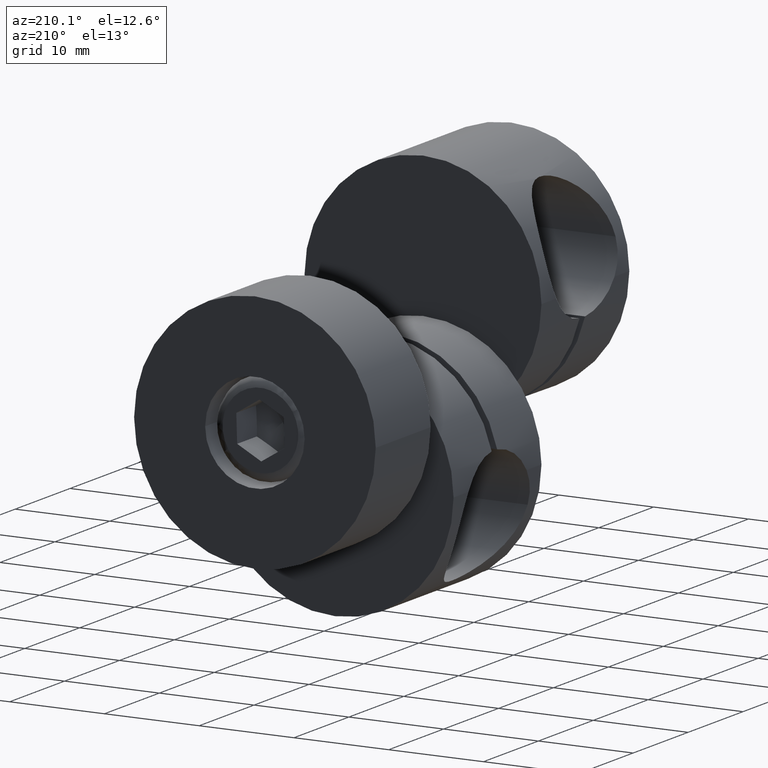
[diagram: clean part render]
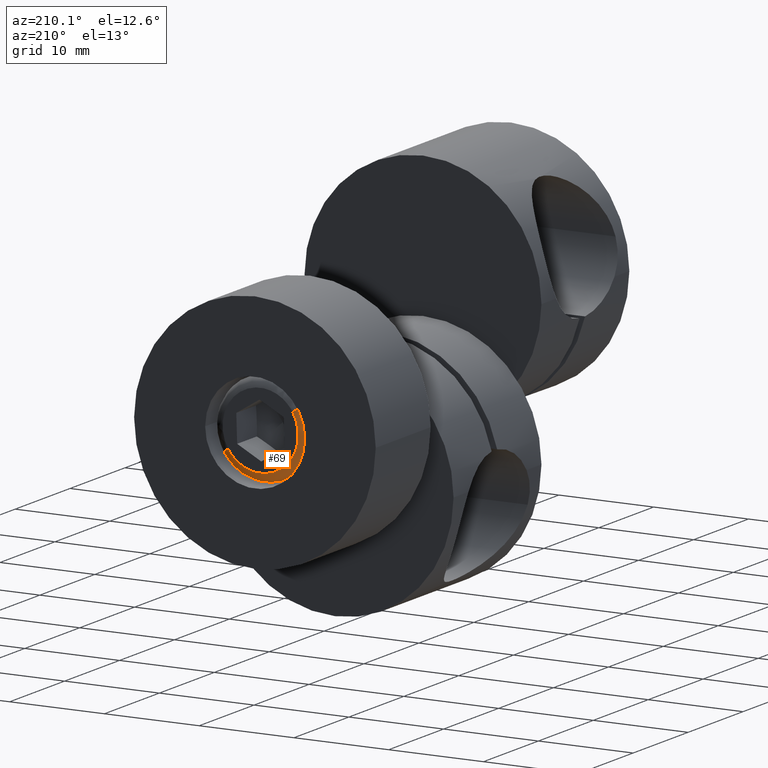
[diagram: same view with one face highlighted and labeled with its STEP entity id]
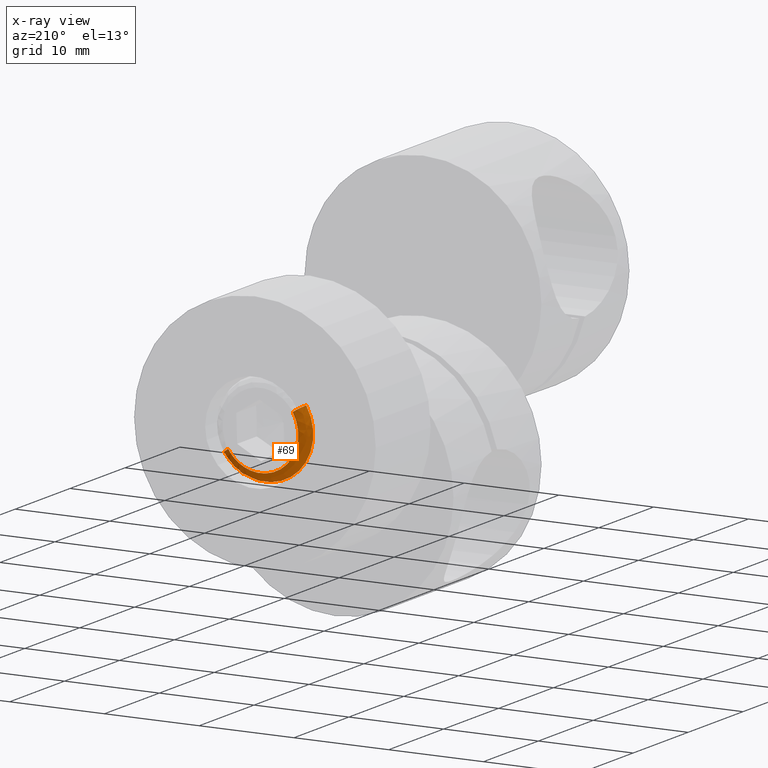
[diagram: x-ray of the same camera — body ghosted, the highlighted face saturated]
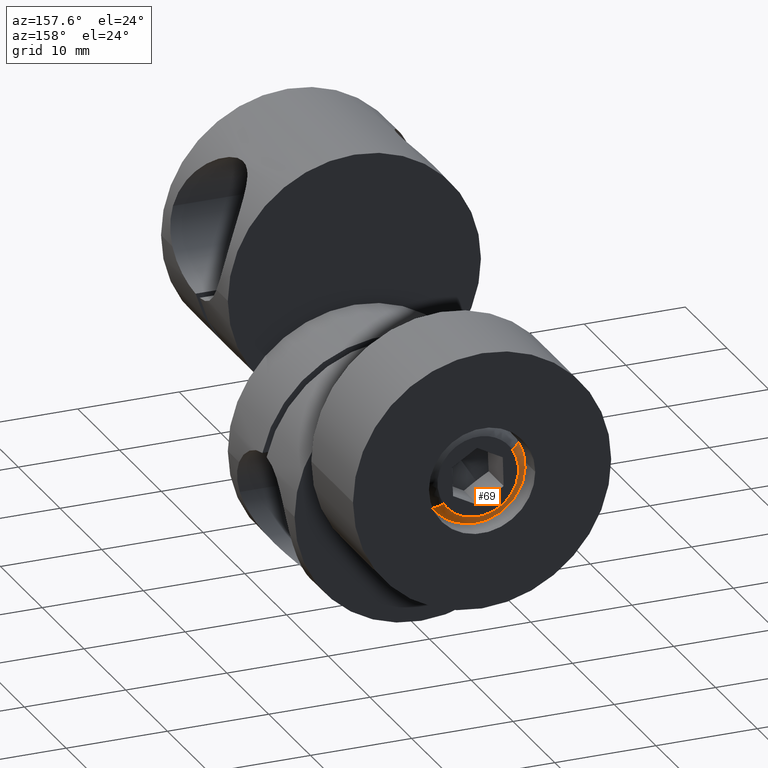
[diagram: same view with one face highlighted and labeled with its STEP entity id]
A machine part, auxiliary view. The second image highlights one B-rep face of the part: STEP entity #69.
The next image is the same camera in x-ray: the body ghosted, the highlighted face saturated — about 0% of this face is hidden behind the body in this view.
A second angle (auxiliary view) of the same face is appended — the face is thin or edge-on in the first view.
In plain terms, the highlighted face is a freeform B-spline surface patch.
Its self-contained STEP definition (entity closure, byte-faithful):
#4 = EDGE_CURVE ( 'NONE', #1082, #1670, #1757, .T. ) ;
#25 = ORIENTED_EDGE ( 'NONE', *, *, #745, .F. ) ;
#35 = CARTESIAN_POINT ( 'NONE',  ( 3.400280457261473100, 20.59999999999999400, 5.393321853731394300 ) ) ;
#69 = ADVANCED_FACE ( 'NONE', ( #2331 ), #425, .T. ) ;
#75 =( BOUNDED_CURVE ( )  B_SPLINE_CURVE ( 3, ( #1812, #1649, #1998, #1453 ),
 .UNSPECIFIED., .F., .T. ) 
 B_SPLINE_CURVE_WITH_KNOTS ( ( 4, 4 ),
 ( 0.2500000000000000000, 0.7500000000000000000 ),
 .UNSPECIFIED. ) 
 CURVE ( )  GEOMETRIC_REPRESENTATION_ITEM ( )  RATIONAL_B_SPLINE_CURVE ( ( 1.000000000000000000, 0.3333333333333337000, 0.3333333333333337000, 1.000000000000000000 ) ) 
 REPRESENTATION_ITEM ( '' )  );
#131 = VERTEX_POINT ( 'NONE', #1459 ) ;
#135 = CARTESIAN_POINT ( 'NONE',  ( -3.400280457261422900, 21.59999999999999100, 9.606678146268564000 ) ) ;
#161 = ORIENTED_EDGE ( 'NONE', *, *, #346, .F. ) ;
#279 = ORIENTED_EDGE ( 'NONE', *, *, #4, .F. ) ;
#287 = CARTESIAN_POINT ( 'NONE',  ( -0.9321480345423888100, 21.60000000000001900, -2.711674020419556600 ) ) ;
#294 = CARTESIAN_POINT ( 'NONE',  ( -4.250350571576832200, 21.18578643762692300, 10.13334768283574200 ) ) ;
#313 = CARTESIAN_POINT ( 'NONE',  ( 3.400280457261428200, 21.59999999999999100, 5.393321853731421800 ) ) ;
#346 = EDGE_CURVE ( 'NONE', #1670, #697, #1292, .T. ) ;
#376 = DIRECTION ( 'NONE',  ( 0.8500701143153676100, 0.0000000000000000000, -0.5266695365671514300 ) ) ;
#382 = VERTEX_POINT ( 'NONE', #1886 ) ;
#425 =( BOUNDED_SURFACE ( )  B_SPLINE_SURFACE ( 3, 3, ( 
 ( #2335, #491, #1238, #1228 ),
 ( #294, #862, #483, #1788 ),
 ( #1940, #2311, #287, #827 ),
 ( #135, #1580, #463, #313 ) ),
 .UNSPECIFIED., .F., .F., .F. ) 
 B_SPLINE_SURFACE_WITH_KNOTS ( ( 4, 4 ),
 ( 4, 4 ),
 ( 0.0000000000000000000, 1.000000000000000000 ),
 ( 0.0000000000000000000, 1.000000000000000000 ),
 .UNSPECIFIED. ) 
 GEOMETRIC_REPRESENTATION_ITEM ( )  RATIONAL_B_SPLINE_SURFACE ( (
 ( 1.000000000000000000, 0.3333333333333332000, 0.3333333333333332000, 1.000000000000000000),
 ( 0.8047378541243537200, 0.2682459513747844600, 0.2682459513747844600, 0.8047378541243537200),
 ( 0.8047378541243537200, 0.2682459513747844600, 0.2682459513747844600, 0.8047378541243537200),
 ( 1.000000000000000000, 0.3333333333333332000, 0.3333333333333332000, 1.000000000000000000) ) ) 
 REPRESENTATION_ITEM ( '' )  SURFACE ( )  );
#456 = AXIS2_PLACEMENT_3D ( 'NONE', #1391, #1959, #674 ) ;
#463 = CARTESIAN_POINT ( 'NONE',  ( -0.8130758352757134800, 21.59999999999998700, -1.407239060791433100 ) ) ;
#483 = CARTESIAN_POINT ( 'NONE',  ( -1.016344794094662200, 21.18578643762692000, -3.634048825989428800 ) ) ;
#491 = CARTESIAN_POINT ( 'NONE',  ( -9.517045937248340700, 20.59999999999999100, 1.632646539682067700 ) ) ;
#500 = EDGE_CURVE ( 'NONE', #131, #382, #75, .T. ) ;
#557 = CIRCLE ( 'NONE', #628, 1.000000000000000400 ) ;
#628 = AXIS2_PLACEMENT_3D ( 'NONE', #1954, #1033, #841 ) ;
#674 = DIRECTION ( 'NONE',  ( 0.5266695365671527600, -6.938893903907231300E-016, 0.8500701143153667200 ) ) ;
#697 = VERTEX_POINT ( 'NONE', #1546 ) ;
#727 = DIRECTION ( 'NONE',  ( 0.5266695365671528700, -4.368582271026613000E-016, 0.8500701143153667200 ) ) ;
#745 = EDGE_CURVE ( 'NONE', #697, #382, #1270, .T. ) ;
#798 = ORIENTED_EDGE ( 'NONE', *, *, #1595, .T. ) ;
#827 = CARTESIAN_POINT ( 'NONE',  ( 3.898240001259342300, 21.60000000000002300, 5.084805982099127600 ) ) ;
#841 = DIRECTION ( 'NONE',  ( -0.8500701143153672800, 0.0000000000000000000, 0.5266695365671521000 ) ) ;
#849 = ORIENTED_EDGE ( 'NONE', *, *, #500, .T. ) ;
#862 = CARTESIAN_POINT ( 'NONE',  ( -9.517045937248335400, 21.18578643762691600, 1.632646539682069500 ) ) ;
#1033 = DIRECTION ( 'NONE',  ( -0.5266695365671529800, -1.289302658935427100E-015, -0.8500701143153666100 ) ) ;
#1082 = VERTEX_POINT ( 'NONE', #1152 ) ;
#1152 = CARTESIAN_POINT ( 'NONE',  ( -4.250350571576832200, 20.59999999999999100, 10.13334768283574200 ) ) ;
#1155 = DIRECTION ( 'NONE',  ( 0.5266695365671527600, -6.938893903907231300E-016, 0.8500701143153667200 ) ) ;
#1163 = DIRECTION ( 'NONE',  ( 6.268266966961504200E-016, -1.000000000000000000, 1.130397227726276000E-016 ) ) ;
#1228 = CARTESIAN_POINT ( 'NONE',  ( 4.250350571576839300, 20.59999999999999800, 4.866652317164241700 ) ) ;
#1238 = CARTESIAN_POINT ( 'NONE',  ( -1.016344794094663100, 20.59999999999999400, -3.634048825989435000 ) ) ;
#1270 = CIRCLE ( 'NONE', #1696, 1.000000000000000000 ) ;
#1292 = CIRCLE ( 'NONE', #1949, 4.999999999999998200 ) ;
#1325 = CARTESIAN_POINT ( 'NONE',  ( -2.633347682835758300, 20.59999999999999100, 3.249649428423162500 ) ) ;
#1391 = CARTESIAN_POINT ( 'NONE',  ( 3.467239618993475800E-015, 20.59999999999999400, 7.499999999999992000 ) ) ;
#1453 = CARTESIAN_POINT ( 'NONE',  ( 3.400280457261471300, 21.59999999999999400, 5.393321853731390700 ) ) ;
#1459 = CARTESIAN_POINT ( 'NONE',  ( -3.400280457261455800, 21.59999999999999400, 9.606678146268585300 ) ) ;
#1546 = CARTESIAN_POINT ( 'NONE',  ( 4.250350571576837500, 20.59999999999999800, 4.866652317164242600 ) ) ;
#1580 = CARTESIAN_POINT ( 'NONE',  ( -7.613636749798567700, 21.59999999999998700, 2.806117231745710600 ) ) ;
#1595 = EDGE_CURVE ( 'NONE', #1082, #131, #557, .T. ) ;
#1649 = CARTESIAN_POINT ( 'NONE',  ( -7.613636749798654800, 21.59999999999998000, 2.806117231745666600 ) ) ;
#1670 = VERTEX_POINT ( 'NONE', #1325 ) ;
#1696 = AXIS2_PLACEMENT_3D ( 'NONE', #35, #727, #376 ) ;
#1718 = CARTESIAN_POINT ( 'NONE',  ( 3.467239618993475800E-015, 20.59999999999999400, 7.499999999999992000 ) ) ;
#1757 = CIRCLE ( 'NONE', #456, 4.999999999999998200 ) ;
#1788 = CARTESIAN_POINT ( 'NONE',  ( 4.250350571576837500, 21.18578643762692700, 4.866652317164243500 ) ) ;
#1812 = CARTESIAN_POINT ( 'NONE',  ( -3.400280457261455800, 21.59999999999999400, 9.606678146268585300 ) ) ;
#1886 = CARTESIAN_POINT ( 'NONE',  ( 3.400280457261471300, 21.59999999999999400, 5.393321853731390700 ) ) ;
#1932 = EDGE_LOOP ( 'NONE', ( #279, #798, #849, #25, #161 ) ) ;
#1940 = CARTESIAN_POINT ( 'NONE',  ( -3.898240001259337500, 21.60000000000002300, 9.915194017900859100 ) ) ;
#1949 = AXIS2_PLACEMENT_3D ( 'NONE', #1718, #1163, #1155 ) ;
#1954 = CARTESIAN_POINT ( 'NONE',  ( -3.400280457261467800, 20.59999999999999100, 9.606678146268590600 ) ) ;
#1959 = DIRECTION ( 'NONE',  ( 6.268266966961504200E-016, -1.000000000000000000, 1.130397227726276000E-016 ) ) ;
#1998 = CARTESIAN_POINT ( 'NONE',  ( -0.8130758352757179200, 21.59999999999999400, -1.407239060791530200 ) ) ;
#2311 = CARTESIAN_POINT ( 'NONE',  ( -8.728628037061072900, 21.60000000000001900, 2.118714015382176200 ) ) ;
#2331 = FACE_OUTER_BOUND ( 'NONE', #1932, .T. ) ;
#2335 = CARTESIAN_POINT ( 'NONE',  ( -4.250350571576833900, 20.59999999999999400, 10.13334768283574400 ) ) ;